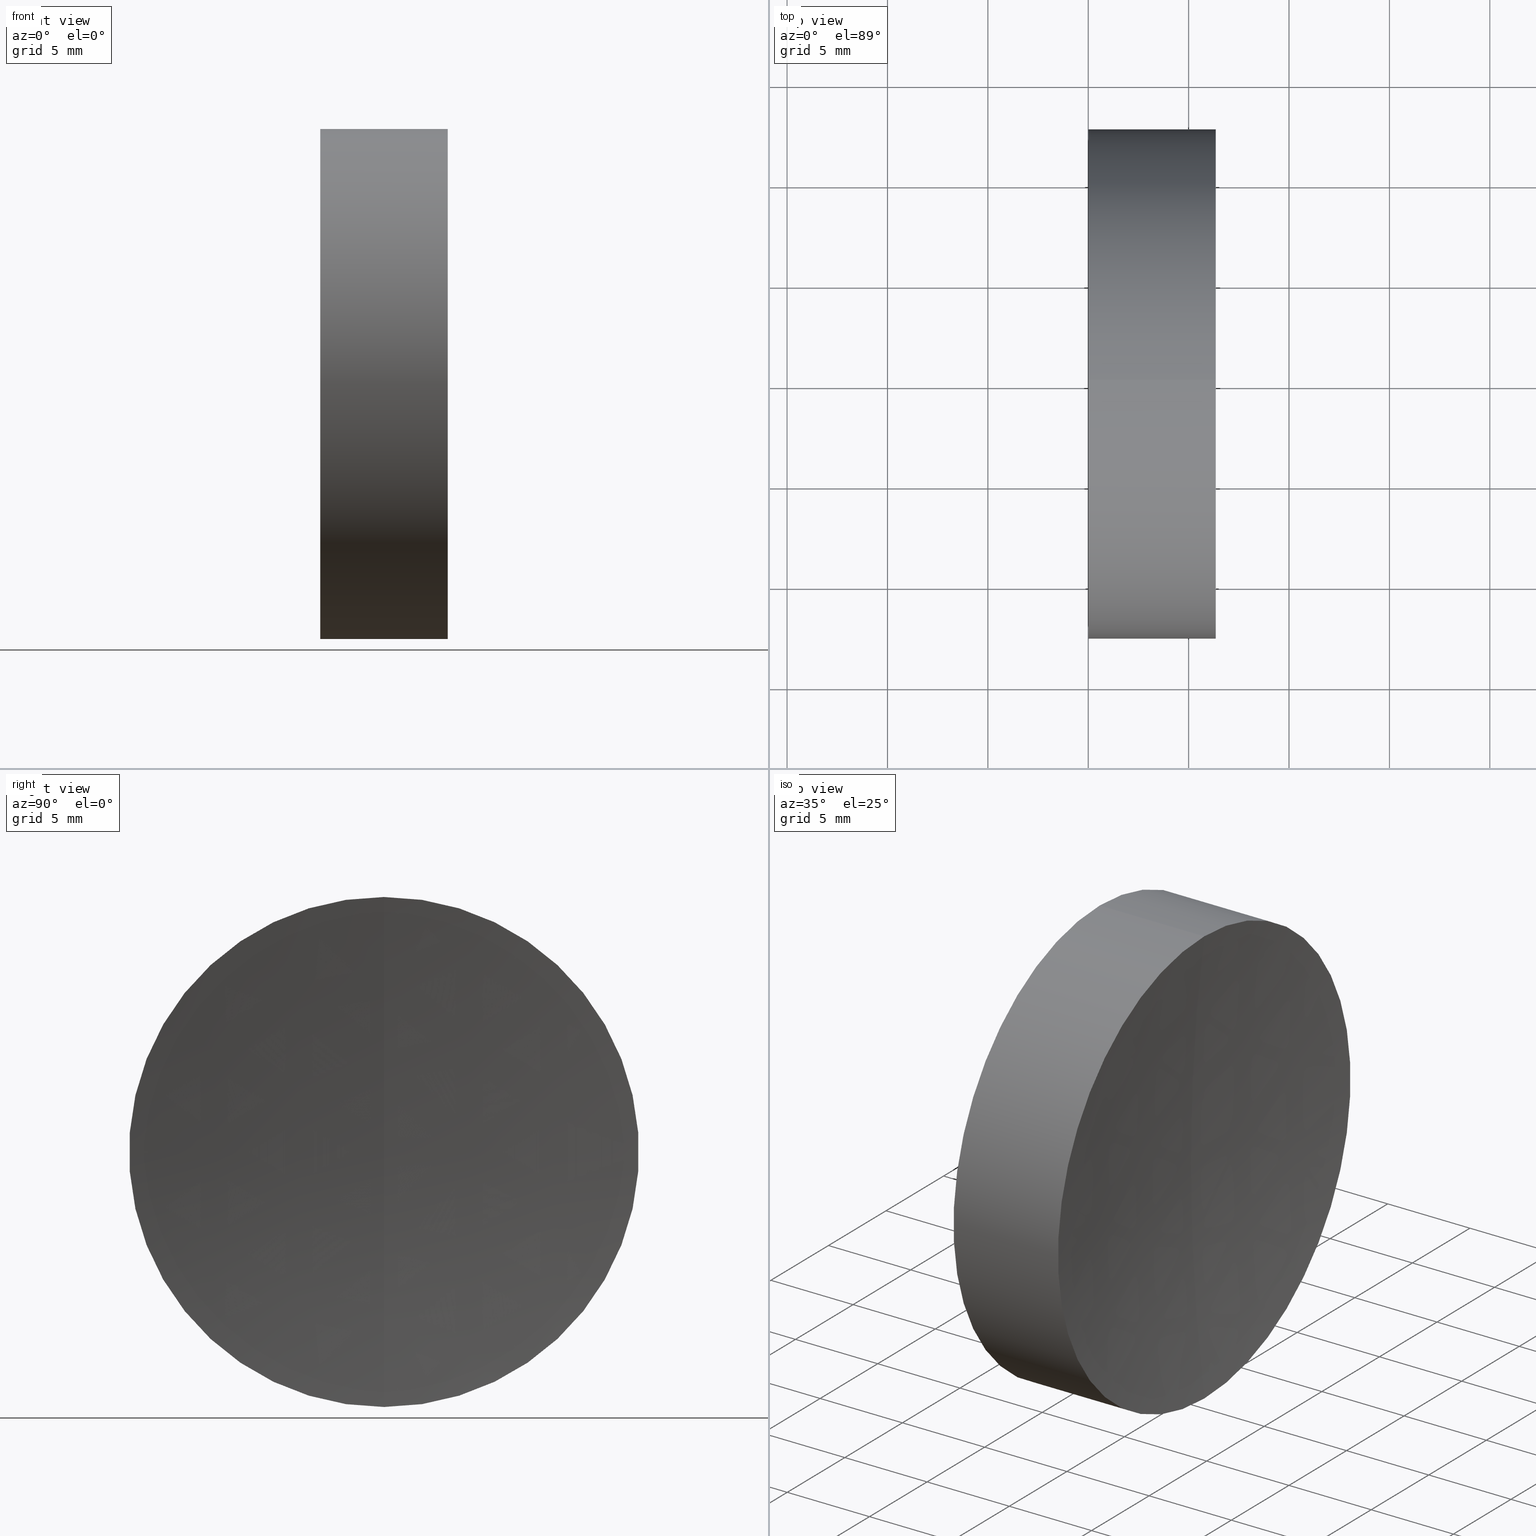
[diagram: canonical four-view strip — front | top / right | iso, engineering-drawing reading convention]
A machine part, canonical four-view strip (front | top / right | iso — engineering-drawing reading convention). The complete STEP part file that produces these views, byte-faithful:
ISO-10303-21;
HEADER;
FILE_DESCRIPTION (( 'STEP AP214' ),
    '1' );
FILE_NAME ('432516.STEP',
    '2019-08-27T01:19:02',
    ( 'user' ),
    ( '΢���й�' ),
    'SwSTEP 2.0',
    'SolidWorks 2016',
    '' );
FILE_SCHEMA (( 'AUTOMOTIVE_DESIGN' ));
ENDSEC;

DATA;
#1 = CARTESIAN_POINT ( 'NONE',  ( 6.349728299595833300, 0.0000000000000000000, 0.0000000000000000000 ) ) ;
#2 = CARTESIAN_POINT ( 'NONE',  ( 0.0000000000000000000, 0.0000000000000000000, 12.69999999999999900 ) ) ;
#3 =( NAMED_UNIT ( * ) SI_UNIT ( $, .STERADIAN. ) SOLID_ANGLE_UNIT ( ) );
#4 = CARTESIAN_POINT ( 'NONE',  ( 0.0000000000000000000, 0.0000000000000000000, 0.0000000000000000000 ) ) ;
#5 = EDGE_CURVE ( 'NONE', #145, #62, #12, .T. ) ;
#6 = DIRECTION ( 'NONE',  ( -0.0000000000000000000, 1.000000000000000000, 1.224646799147353200E-016 ) ) ;
#7 = CARTESIAN_POINT ( 'NONE',  ( 105.5400000000000100, 0.0000000000000000000, 0.0000000000000000000 ) ) ;
#8 = CIRCLE ( 'NONE', #31, 100.0000000000000000 ) ;
#9 = ORIENTED_EDGE ( 'NONE', *, *, #164, .T. ) ;
#10 = CLOSED_SHELL ( 'NONE', ( #162, #97, #46, #35, #147 ) ) ;
#11 = CARTESIAN_POINT ( 'NONE',  ( 0.0000000000000000000, 0.0000000000000000000, 0.0000000000000000000 ) ) ;
#12 = CIRCLE ( 'NONE', #80, 12.69999999999999900 ) ;
#13 = DIRECTION ( 'NONE',  ( -1.000000000000000000, -0.0000000000000000000, -0.0000000000000000000 ) ) ;
#14 = ORIENTED_EDGE ( 'NONE', *, *, #166, .F. ) ;
#15 =( LENGTH_UNIT ( ) NAMED_UNIT ( * ) SI_UNIT ( .MILLI., .METRE. ) );
#16 = SURFACE_SIDE_STYLE ('',( #142 ) ) ;
#17 =( LENGTH_UNIT ( ) NAMED_UNIT ( * ) SI_UNIT ( .MILLI., .METRE. ) );
#18 = AXIS2_PLACEMENT_3D ( 'NONE', #106, #158, #69 ) ;
#19 = EDGE_LOOP ( 'NONE', ( #138, #137, #65, #81 ) ) ;
#20 = EDGE_CURVE ( 'NONE', #100, #149, #121, .T. ) ;
#21 = VECTOR ( 'NONE', #156, 1000.000000000000000 ) ;
#22 = EDGE_CURVE ( 'NONE', #100, #62, #53, .T. ) ;
#23 = PRODUCT_DEFINITION ( 'δ֪', '', #36, #150 ) ;
#24 = DIRECTION ( 'NONE',  ( -1.000000000000000000, -0.0000000000000000000, -0.0000000000000000000 ) ) ;
#25 = SPHERICAL_SURFACE ( 'NONE', #61, 100.0000000000000000 ) ;
#26 = DIRECTION ( 'NONE',  ( 0.0000000000000000000, 1.000000000000000000, 0.0000000000000000000 ) ) ;
#27 = DIRECTION ( 'NONE',  ( 0.0000000000000000000, 0.0000000000000000000, 1.000000000000000000 ) ) ;
#28 = UNCERTAINTY_MEASURE_WITH_UNIT (LENGTH_MEASURE( 1.000000000000000100E-005 ), #73, 'distance_accuracy_value', 'NONE');
#29 = DIRECTION ( 'NONE',  ( 0.0000000000000000000, -1.000000000000000000, 0.0000000000000000000 ) ) ;
#30 = SURFACE_SIDE_STYLE ('',( #99 ) ) ;
#31 = AXIS2_PLACEMENT_3D ( 'NONE', #94, #6, #82 ) ;
#32 = ORIENTED_EDGE ( 'NONE', *, *, #5, .F. ) ;
#33 =( NAMED_UNIT ( * ) PLANE_ANGLE_UNIT ( ) SI_UNIT ( $, .RADIAN. ) );
#34 = ORIENTED_EDGE ( 'NONE', *, *, #166, .T. ) ;
#35 = ADVANCED_FACE ( 'NONE', ( #60 ), #154, .F. ) ;
#36 = PRODUCT_DEFINITION_FORMATION_WITH_SPECIFIED_SOURCE ( '�κ�', '', #124, .NOT_KNOWN. ) ;
#37 = AXIS2_PLACEMENT_3D ( 'NONE', #120, #91, #126 ) ;
#38 = CARTESIAN_POINT ( 'NONE',  ( 105.5400000000000100, 0.0000000000000000000, 0.0000000000000000000 ) ) ;
#39 = CARTESIAN_POINT ( 'NONE',  ( 6.349728299595833300, 0.0000000000000000000, 0.0000000000000000000 ) ) ;
#40 = CIRCLE ( 'NONE', #157, 12.69999999999999900 ) ;
#41 = ORIENTED_EDGE ( 'NONE', *, *, #20, .F. ) ;
#42 = APPLICATION_CONTEXT ( 'automotive_design' ) ;
#43 = DIRECTION ( 'NONE',  ( -1.000000000000000000, -0.0000000000000000000, -0.0000000000000000000 ) ) ;
#44 = SURFACE_STYLE_USAGE ( .BOTH. , #16 ) ;
#45 = PRODUCT_RELATED_PRODUCT_CATEGORY ( 'part', '', ( #124 ) ) ;
#46 = ADVANCED_FACE ( 'NONE', ( #83 ), #141, .F. ) ;
#47 = CYLINDRICAL_SURFACE ( 'NONE', #37, 12.70000000000001200 ) ;
#48 = EDGE_LOOP ( 'NONE', ( #14, #41, #74 ) ) ;
#49 = AXIS2_PLACEMENT_3D ( 'NONE', #1, #77, #153 ) ;
#50 = PRESENTATION_STYLE_ASSIGNMENT (( #44 ) ) ;
#51 = AXIS2_PLACEMENT_3D ( 'NONE', #11, #101, #129 ) ;
#52 = EDGE_LOOP ( 'NONE', ( #95, #111, #87, #32 ) ) ;
#53 = LINE ( 'NONE', #128, #21 ) ;
#54 = CARTESIAN_POINT ( 'NONE',  ( 105.5400000000000100, 0.0000000000000000000, 0.0000000000000000000 ) ) ;
#55 = APPLICATION_CONTEXT ( 'automotive_design' ) ;
#56 = PRODUCT_DEFINITION_SHAPE ( 'NONE', 'NONE',  #23 ) ;
#57 = APPLICATION_PROTOCOL_DEFINITION ( 'draft international standard', 'automotive_design', 1998, #42 ) ;
#58 = FILL_AREA_STYLE ('',( #131 ) ) ;
#59 = AXIS2_PLACEMENT_3D ( 'NONE', #54, #102, #78 ) ;
#60 = FACE_OUTER_BOUND ( 'NONE', #48, .T. ) ;
#61 = AXIS2_PLACEMENT_3D ( 'NONE', #38, #26, #140 ) ;
#62 = VERTEX_POINT ( 'NONE', #2 ) ;
#63 = CIRCLE ( 'NONE', #49, 12.70000000000002400 ) ;
#64 = PRESENTATION_STYLE_ASSIGNMENT (( #105 ) ) ;
#65 = ORIENTED_EDGE ( 'NONE', *, *, #164, .F. ) ;
#66 = CARTESIAN_POINT ( 'NONE',  ( 0.0000000000000000000, 1.555301434917140000E-015, -12.70000000000001200 ) ) ;
#67 = DIRECTION ( 'NONE',  ( 1.000000000000000000, 0.0000000000000000000, 0.0000000000000000000 ) ) ;
#68 = EDGE_CURVE ( 'NONE', #149, #100, #63, .T. ) ;
#69 = DIRECTION ( 'NONE',  ( 1.000000000000000000, 0.0000000000000000000, 0.0000000000000000000 ) ) ;
#70 = CARTESIAN_POINT ( 'NONE',  ( 6.349728299595833300, 1.555301434917139200E-015, -12.70000000000000600 ) ) ;
#71 =( NAMED_UNIT ( * ) SI_UNIT ( $, .STERADIAN. ) SOLID_ANGLE_UNIT ( ) );
#72 = ORIENTED_EDGE ( 'NONE', *, *, #108, .F. ) ;
#73 =( LENGTH_UNIT ( ) NAMED_UNIT ( * ) SI_UNIT ( .MILLI., .METRE. ) );
#74 = ORIENTED_EDGE ( 'NONE', *, *, #108, .T. ) ;
#75 = AXIS2_PLACEMENT_3D ( 'NONE', #155, #67, #127 ) ;
#76 = VERTEX_POINT ( 'NONE', #112 ) ;
#77 = DIRECTION ( 'NONE',  ( -1.000000000000000000, -0.0000000000000000000, -0.0000000000000000000 ) ) ;
#78 = DIRECTION ( 'NONE',  ( 0.0000000000000000000, 0.0000000000000000000, 1.000000000000000000 ) ) ;
#79 = CYLINDRICAL_SURFACE ( 'NONE', #51, 12.70000000000001200 ) ;
#80 = AXIS2_PLACEMENT_3D ( 'NONE', #4, #13, #143 ) ;
#81 = ORIENTED_EDGE ( 'NONE', *, *, #22, .F. ) ;
#82 = DIRECTION ( 'NONE',  ( 0.0000000000000000000, -1.224646799147353200E-016, 1.000000000000000000 ) ) ;
#83 = FACE_OUTER_BOUND ( 'NONE', #109, .T. ) ;
#84 = MECHANICAL_DESIGN_GEOMETRIC_PRESENTATION_REPRESENTATION (  '', ( #98 ), #136 ) ;
#85 = EDGE_LOOP ( 'NONE', ( #125, #34, #72 ) ) ;
#86 = UNCERTAINTY_MEASURE_WITH_UNIT (LENGTH_MEASURE( 1.000000000000000100E-005 ), #15, 'distance_accuracy_value', 'NONE');
#87 = ORIENTED_EDGE ( 'NONE', *, *, #22, .T. ) ;
#88 = CARTESIAN_POINT ( 'NONE',  ( 0.0000000000000000000, 1.555301434917139200E-015, -12.69999999999999900 ) ) ;
#89 = FACE_OUTER_BOUND ( 'NONE', #85, .T. ) ;
#90 = CARTESIAN_POINT ( 'NONE',  ( 6.349728299595833300, 0.0000000000000000000, 12.70000000000000600 ) ) ;
#91 = DIRECTION ( 'NONE',  ( -1.000000000000000000, -0.0000000000000000000, -0.0000000000000000000 ) ) ;
#92 = PRESENTATION_LAYER_ASSIGNMENT (  '', '', ( #98 ) ) ;
#93 =( NAMED_UNIT ( * ) PLANE_ANGLE_UNIT ( ) SI_UNIT ( $, .RADIAN. ) );
#94 = CARTESIAN_POINT ( 'NONE',  ( 105.5400000000000100, 0.0000000000000000000, 0.0000000000000000000 ) ) ;
#95 = ORIENTED_EDGE ( 'NONE', *, *, #103, .F. ) ;
#96 = VECTOR ( 'NONE', #24, 1000.000000000000000 ) ;
#97 = ADVANCED_FACE ( 'NONE', ( #89 ), #25, .F. ) ;
#98 = STYLED_ITEM ( 'NONE', ( #50 ), #163 ) ;
#99 = SURFACE_STYLE_FILL_AREA ( #118 ) ;
#100 = VERTEX_POINT ( 'NONE', #90 ) ;
#101 = DIRECTION ( 'NONE',  ( -1.000000000000000000, -0.0000000000000000000, -0.0000000000000000000 ) ) ;
#102 = DIRECTION ( 'NONE',  ( 0.0000000000000000000, 1.000000000000000000, 0.0000000000000000000 ) ) ;
#103 = EDGE_CURVE ( 'NONE', #149, #145, #161, .T. ) ;
#104 = FACE_OUTER_BOUND ( 'NONE', #52, .T. ) ;
#105 = SURFACE_STYLE_USAGE ( .BOTH. , #30 ) ;
#106 = CARTESIAN_POINT ( 'NONE',  ( 0.0000000000000000000, 0.0000000000000000000, 0.0000000000000000000 ) ) ;
#107 =( GEOMETRIC_REPRESENTATION_CONTEXT ( 3 ) GLOBAL_UNCERTAINTY_ASSIGNED_CONTEXT ( ( #165 ) ) GLOBAL_UNIT_ASSIGNED_CONTEXT ( ( #17, #159, #71 ) ) REPRESENTATION_CONTEXT ( 'NONE', 'WORKASPACE' ) );
#108 = EDGE_CURVE ( 'NONE', #100, #76, #110, .T. ) ;
#109 = EDGE_LOOP ( 'NONE', ( #9, #113 ) ) ;
#110 = CIRCLE ( 'NONE', #117, 100.0000000000000000 ) ;
#111 = ORIENTED_EDGE ( 'NONE', *, *, #68, .T. ) ;
#112 = CARTESIAN_POINT ( 'NONE',  ( 5.540000000000003600, 0.0000000000000000000, 6.123233995736766100E-015 ) ) ;
#113 = ORIENTED_EDGE ( 'NONE', *, *, #5, .T. ) ;
#114 = DIRECTION ( 'NONE',  ( -1.000000000000000000, -0.0000000000000000000, -0.0000000000000000000 ) ) ;
#115 = DIRECTION ( 'NONE',  ( 0.0000000000000000000, 0.0000000000000000000, -1.000000000000000000 ) ) ;
#116 = FILL_AREA_STYLE_COLOUR ( '', #132 ) ;
#117 = AXIS2_PLACEMENT_3D ( 'NONE', #7, #29, #115 ) ;
#118 = FILL_AREA_STYLE ('',( #116 ) ) ;
#119 = DIRECTION ( 'NONE',  ( 0.0000000000000000000, 0.0000000000000000000, 1.000000000000000000 ) ) ;
#120 = CARTESIAN_POINT ( 'NONE',  ( 0.0000000000000000000, 0.0000000000000000000, 0.0000000000000000000 ) ) ;
#121 = CIRCLE ( 'NONE', #123, 12.70000000000002400 ) ;
#122 = SHAPE_DEFINITION_REPRESENTATION ( #56, #135 ) ;
#123 = AXIS2_PLACEMENT_3D ( 'NONE', #39, #114, #27 ) ;
#124 = PRODUCT ( '432516', '432516', '', ( #144 ) ) ;
#125 = ORIENTED_EDGE ( 'NONE', *, *, #68, .F. ) ;
#126 = DIRECTION ( 'NONE',  ( 0.0000000000000000000, 0.0000000000000000000, 1.000000000000000000 ) ) ;
#127 = DIRECTION ( 'NONE',  ( 0.0000000000000000000, 0.0000000000000000000, -1.000000000000000000 ) ) ;
#128 = CARTESIAN_POINT ( 'NONE',  ( 0.0000000000000000000, 0.0000000000000000000, 12.70000000000001200 ) ) ;
#129 = DIRECTION ( 'NONE',  ( 0.0000000000000000000, 0.0000000000000000000, 1.000000000000000000 ) ) ;
#130 = APPLICATION_PROTOCOL_DEFINITION ( 'draft international standard', 'automotive_design', 1998, #55 ) ;
#131 = FILL_AREA_STYLE_COLOUR ( '', #148 ) ;
#132 = COLOUR_RGB ( '',1.000000000000000000, 1.000000000000000000, 1.000000000000000000 ) ;
#133 = CARTESIAN_POINT ( 'NONE',  ( 0.0000000000000000000, 0.0000000000000000000, 0.0000000000000000000 ) ) ;
#134 = STYLED_ITEM ( 'NONE', ( #64 ), #135 ) ;
#135 = ADVANCED_BREP_SHAPE_REPRESENTATION ( '432516', ( #163, #18 ), #107 ) ;
#136 =( GEOMETRIC_REPRESENTATION_CONTEXT ( 3 ) GLOBAL_UNCERTAINTY_ASSIGNED_CONTEXT ( ( #28 ) ) GLOBAL_UNIT_ASSIGNED_CONTEXT ( ( #73, #33, #146 ) ) REPRESENTATION_CONTEXT ( 'NONE', 'WORKASPACE' ) );
#137 = ORIENTED_EDGE ( 'NONE', *, *, #103, .T. ) ;
#138 = ORIENTED_EDGE ( 'NONE', *, *, #20, .T. ) ;
#139 = PRESENTATION_LAYER_ASSIGNMENT (  '', '', ( #134 ) ) ;
#140 = DIRECTION ( 'NONE',  ( 0.0000000000000000000, 0.0000000000000000000, 1.000000000000000000 ) ) ;
#141 = PLANE ( 'NONE',  #75 ) ;
#142 = SURFACE_STYLE_FILL_AREA ( #58 ) ;
#143 = DIRECTION ( 'NONE',  ( 0.0000000000000000000, 0.0000000000000000000, 1.000000000000000000 ) ) ;
#144 = PRODUCT_CONTEXT ( 'NONE', #42, 'mechanical' ) ;
#145 = VERTEX_POINT ( 'NONE', #88 ) ;
#146 =( NAMED_UNIT ( * ) SI_UNIT ( $, .STERADIAN. ) SOLID_ANGLE_UNIT ( ) );
#147 = ADVANCED_FACE ( 'NONE', ( #104 ), #79, .T. ) ;
#148 = COLOUR_RGB ( '',1.000000000000000000, 1.000000000000000000, 1.000000000000000000 ) ;
#149 = VERTEX_POINT ( 'NONE', #70 ) ;
#150 = PRODUCT_DEFINITION_CONTEXT ( 'detailed design', #55, 'design' ) ;
#151 = MECHANICAL_DESIGN_GEOMETRIC_PRESENTATION_REPRESENTATION (  '', ( #134 ), #160 ) ;
#152 = FACE_OUTER_BOUND ( 'NONE', #19, .T. ) ;
#153 = DIRECTION ( 'NONE',  ( 0.0000000000000000000, 0.0000000000000000000, 1.000000000000000000 ) ) ;
#154 = SPHERICAL_SURFACE ( 'NONE', #59, 100.0000000000000000 ) ;
#155 = CARTESIAN_POINT ( 'NONE',  ( 0.0000000000000000000, 0.0000000000000000000, 0.0000000000000000000 ) ) ;
#156 = DIRECTION ( 'NONE',  ( -1.000000000000000000, -0.0000000000000000000, -0.0000000000000000000 ) ) ;
#157 = AXIS2_PLACEMENT_3D ( 'NONE', #133, #43, #119 ) ;
#158 = DIRECTION ( 'NONE',  ( 0.0000000000000000000, 0.0000000000000000000, 1.000000000000000000 ) ) ;
#159 =( NAMED_UNIT ( * ) PLANE_ANGLE_UNIT ( ) SI_UNIT ( $, .RADIAN. ) );
#160 =( GEOMETRIC_REPRESENTATION_CONTEXT ( 3 ) GLOBAL_UNCERTAINTY_ASSIGNED_CONTEXT ( ( #86 ) ) GLOBAL_UNIT_ASSIGNED_CONTEXT ( ( #15, #93, #3 ) ) REPRESENTATION_CONTEXT ( 'NONE', 'WORKASPACE' ) );
#161 = LINE ( 'NONE', #66, #96 ) ;
#162 = ADVANCED_FACE ( 'NONE', ( #152 ), #47, .T. ) ;
#163 = MANIFOLD_SOLID_BREP ( '��ת1', #10 ) ;
#164 = EDGE_CURVE ( 'NONE', #62, #145, #40, .T. ) ;
#165 = UNCERTAINTY_MEASURE_WITH_UNIT (LENGTH_MEASURE( 1.000000000000000100E-005 ), #17, 'distance_accuracy_value', 'NONE');
#166 = EDGE_CURVE ( 'NONE', #149, #76, #8, .T. ) ;
ENDSEC;
END-ISO-10303-21;
